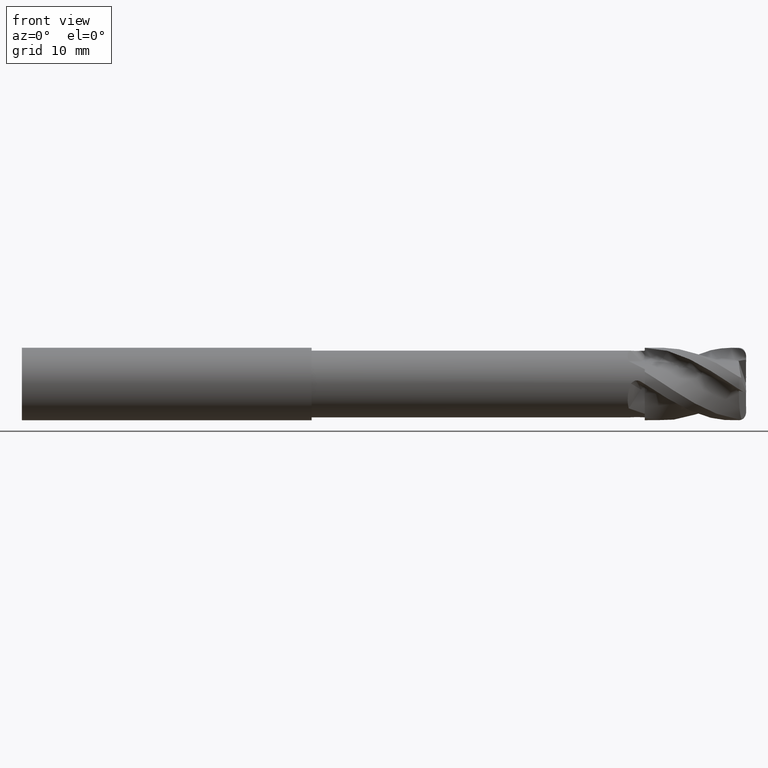
[diagram: clean part render]
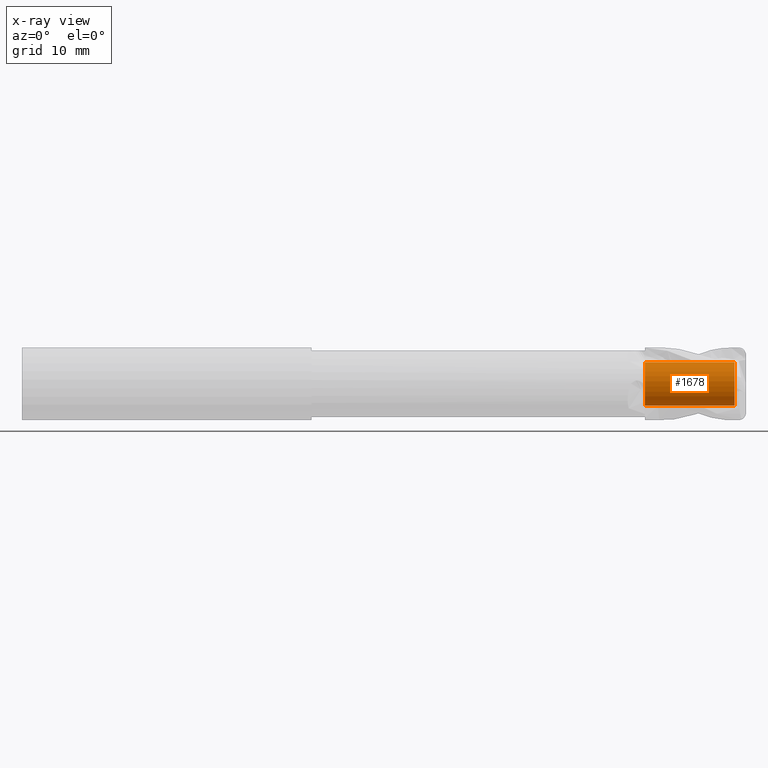
[diagram: x-ray — body ghosted, one internal face saturated and labeled with its STEP entity id]
A machine part, front view, then the same camera in x-ray: the body is ghosted and one INTERNAL B-rep face — a face not visible from any outside direction — is saturated and labeled: STEP entity #1678.
In plain terms, the highlighted cylindrical surface (edge-blend (fillet) strip) has radius 3 mm, axis along (-1, -0, -0).
Its self-contained STEP definition (entity closure, byte-faithful):
#72 = EDGE_CURVE ( 'NONE', #1770, #2616, #416, .T. ) ;
#105 = AXIS2_PLACEMENT_3D ( 'NONE', #2677, #2656, #2663 ) ;
#149 = EDGE_CURVE ( 'NONE', #2488, #2616, #752, .T. ) ;
#177 = AXIS2_PLACEMENT_3D ( 'NONE', #5504, #5505, #5506 ) ;
#248 = VECTOR ( 'NONE', #5523, 1000.000000000000000 ) ;
#252 = CIRCLE ( 'NONE', #177, 3.000000000000016400 ) ;
#416 = CIRCLE ( 'NONE', #5691, 3.000000000000016400 ) ;
#446 = EDGE_LOOP ( 'NONE', ( #673, #583, #603, #699 ) ) ;
#583 = ORIENTED_EDGE ( 'NONE', *, *, #5705, .T. ) ;
#603 = ORIENTED_EDGE ( 'NONE', *, *, #72, .T. ) ;
#673 = ORIENTED_EDGE ( 'NONE', *, *, #5702, .F. ) ;
#699 = ORIENTED_EDGE ( 'NONE', *, *, #149, .F. ) ;
#752 = LINE ( 'NONE', #2921, #4820 ) ;
#1678 = ADVANCED_FACE ( 'NONE', ( #2810 ), #2821, .F. ) ;
#1770 = VERTEX_POINT ( 'NONE', #5233 ) ;
#1781 = VERTEX_POINT ( 'NONE', #5288 ) ;
#2488 = VERTEX_POINT ( 'NONE', #5308 ) ;
#2616 = VERTEX_POINT ( 'NONE', #5324 ) ;
#2656 = DIRECTION ( 'NONE',  ( -1.000000000000000000, -0.0000000000000000000, -0.0000000000000000000 ) ) ;
#2663 = DIRECTION ( 'NONE',  ( 0.0000000000000000000, 0.0000000000000000000, 1.000000000000000000 ) ) ;
#2677 = CARTESIAN_POINT ( 'NONE',  ( -39.76065438357068200, 0.0000000000000000000, 0.0000000000000000000 ) ) ;
#2798 = LINE ( 'NONE', #5522, #248 ) ;
#2810 = FACE_OUTER_BOUND ( 'NONE', #446, .T. ) ;
#2821 = CYLINDRICAL_SURFACE ( 'NONE', #105, 3.000000000000016400 ) ;
#2919 = DIRECTION ( 'NONE',  ( -1.000000000000000000, -0.0000000000000000000, -0.0000000000000000000 ) ) ;
#2921 = CARTESIAN_POINT ( 'NONE',  ( -39.76065438357068200, 0.0000000000000000000, 3.000000000000016400 ) ) ;
#4730 = DIRECTION ( 'NONE',  ( 0.0000000000000000000, 0.0000000000000000000, 1.000000000000000000 ) ) ;
#4733 = DIRECTION ( 'NONE',  ( -1.000000000000000000, -0.0000000000000000000, -0.0000000000000000000 ) ) ;
#4772 = CARTESIAN_POINT ( 'NONE',  ( 46.00000000000000000, 0.0000000000000000000, 0.0000000000000000000 ) ) ;
#4820 = VECTOR ( 'NONE', #2919, 1000.000000000000000 ) ;
#5233 = CARTESIAN_POINT ( 'NONE',  ( 46.00000000000000000, 3.673940397442080100E-016, -3.000000000000016400 ) ) ;
#5288 = CARTESIAN_POINT ( 'NONE',  ( 58.39127313220923600, 3.673940397442080100E-016, -3.000000000000016400 ) ) ;
#5308 = CARTESIAN_POINT ( 'NONE',  ( 58.39127313220923600, 0.0000000000000000000, 3.000000000000016400 ) ) ;
#5324 = CARTESIAN_POINT ( 'NONE',  ( 46.00000000000000000, 0.0000000000000000000, 3.000000000000016400 ) ) ;
#5504 = CARTESIAN_POINT ( 'NONE',  ( 58.39127313220923600, 0.0000000000000000000, 0.0000000000000000000 ) ) ;
#5505 = DIRECTION ( 'NONE',  ( -1.000000000000000000, -0.0000000000000000000, -0.0000000000000000000 ) ) ;
#5506 = DIRECTION ( 'NONE',  ( 0.0000000000000000000, 0.0000000000000000000, 1.000000000000000000 ) ) ;
#5522 = CARTESIAN_POINT ( 'NONE',  ( -39.76065438357068200, 3.673940397442080100E-016, -3.000000000000016400 ) ) ;
#5523 = DIRECTION ( 'NONE',  ( -1.000000000000000000, -0.0000000000000000000, -0.0000000000000000000 ) ) ;
#5691 = AXIS2_PLACEMENT_3D ( 'NONE', #4772, #4733, #4730 ) ;
#5702 = EDGE_CURVE ( 'NONE', #1781, #2488, #252, .T. ) ;
#5705 = EDGE_CURVE ( 'NONE', #1781, #1770, #2798, .T. ) ;